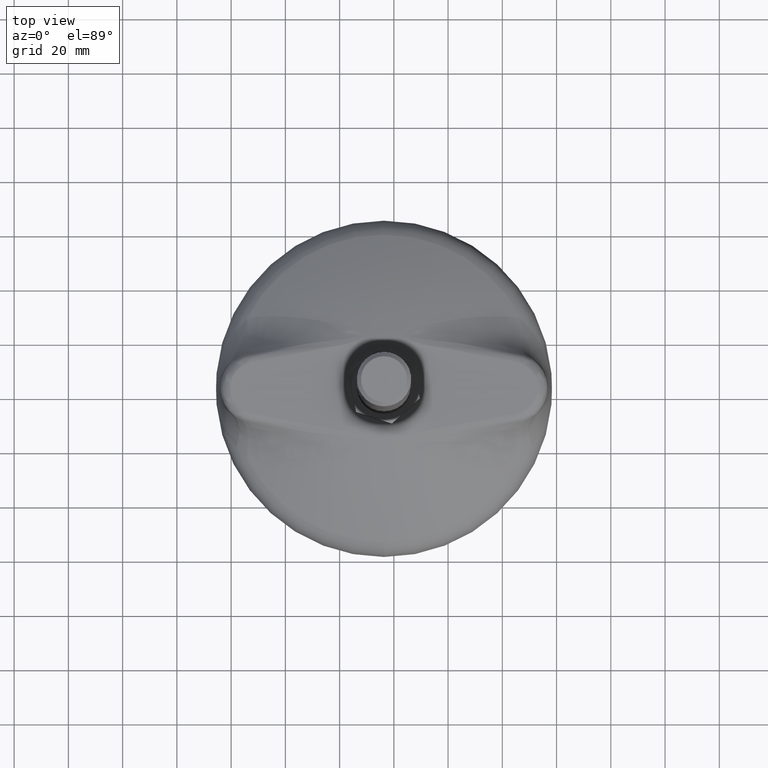
[diagram: clean part render]
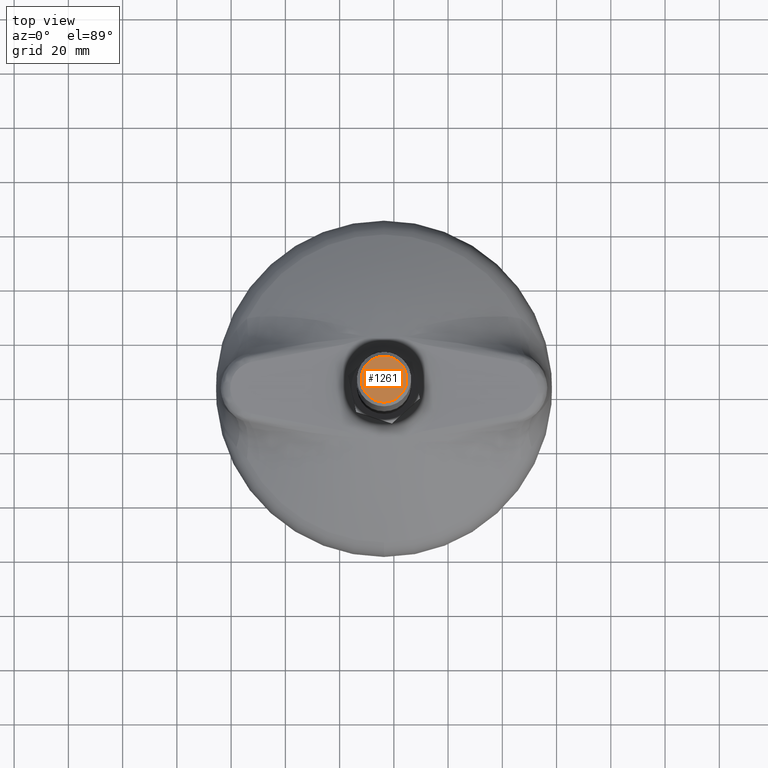
[diagram: same view with one face highlighted and labeled with its STEP entity id]
A machine part, top view. The second image highlights one B-rep face of the part: STEP entity #1261.
In plain terms, the highlighted planar face has unit normal (0, 0, 1).
Its self-contained STEP definition (entity closure, byte-faithful):
#190=PLANE('',#1434);
#242=FACE_OUTER_BOUND('',#325,.T.);
#325=EDGE_LOOP('',(#941));
#436=CIRCLE('',#1394,8.4665);
#532=VERTEX_POINT('',#1885);
#653=EDGE_CURVE('',#532,#532,#436,.T.);
#941=ORIENTED_EDGE('',*,*,#653,.T.);
#1261=ADVANCED_FACE('',(#242),#190,.T.);
#1394=AXIS2_PLACEMENT_3D('',#1887,#1554,#1555);
#1434=AXIS2_PLACEMENT_3D('',#2036,#1642,#1643);
#1554=DIRECTION('center_axis',(0.,1.,0.));
#1555=DIRECTION('ref_axis',(1.,0.,0.));
#1642=DIRECTION('center_axis',(0.,1.,0.));
#1643=DIRECTION('ref_axis',(0.,0.,1.));
#1885=CARTESIAN_POINT('',(-8.4665,204.144,1.03681296946372E-15));
#1887=CARTESIAN_POINT('Origin',(0.,204.144,0.));
#2036=CARTESIAN_POINT('Origin',(4.23325,204.144,-1.03681296946372E-15));